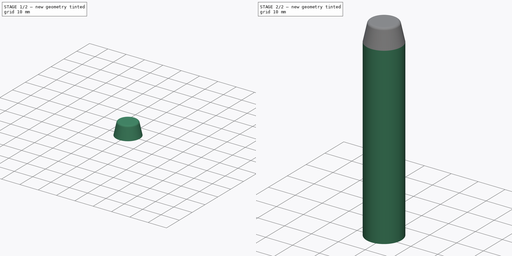
[diagram: build sequence overview — one tinted view per stage of 2, left to right]
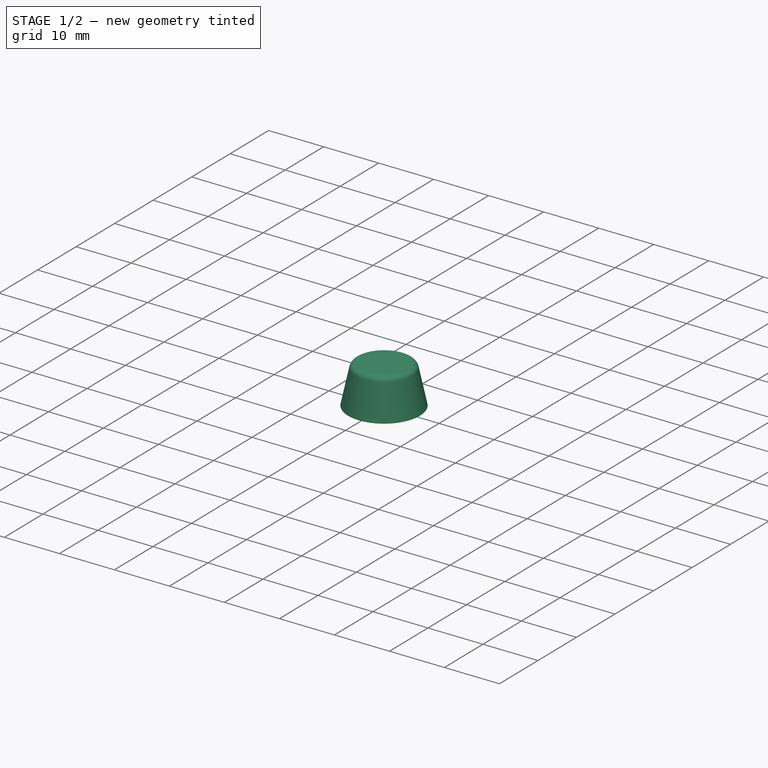
[diagram: stage 1 of 2 — iso view after this stage's code; geometry added in this stage tinted green]
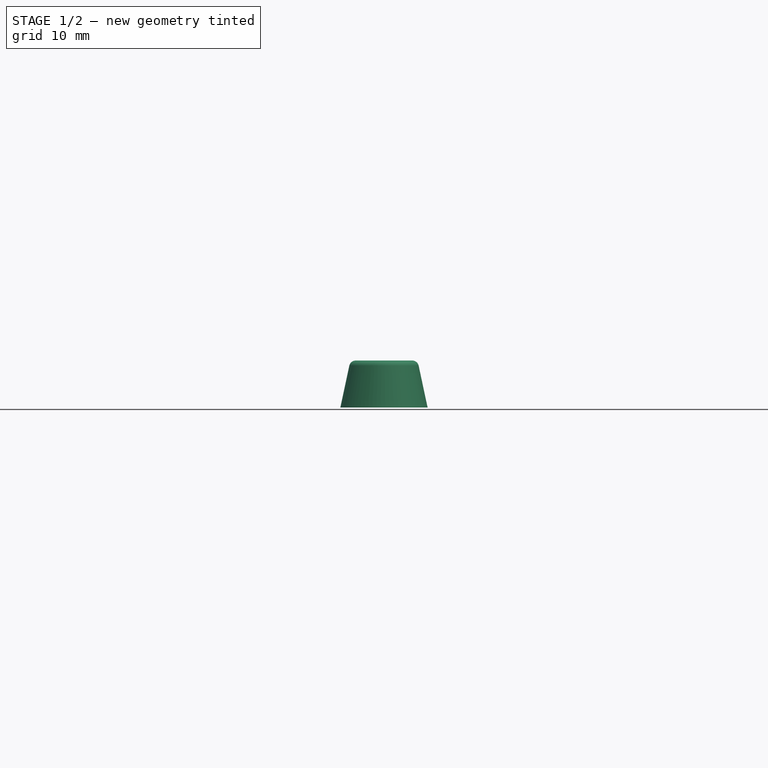
[diagram: stage 1 of 2 — front view after this stage's code; geometry added in this stage tinted green]
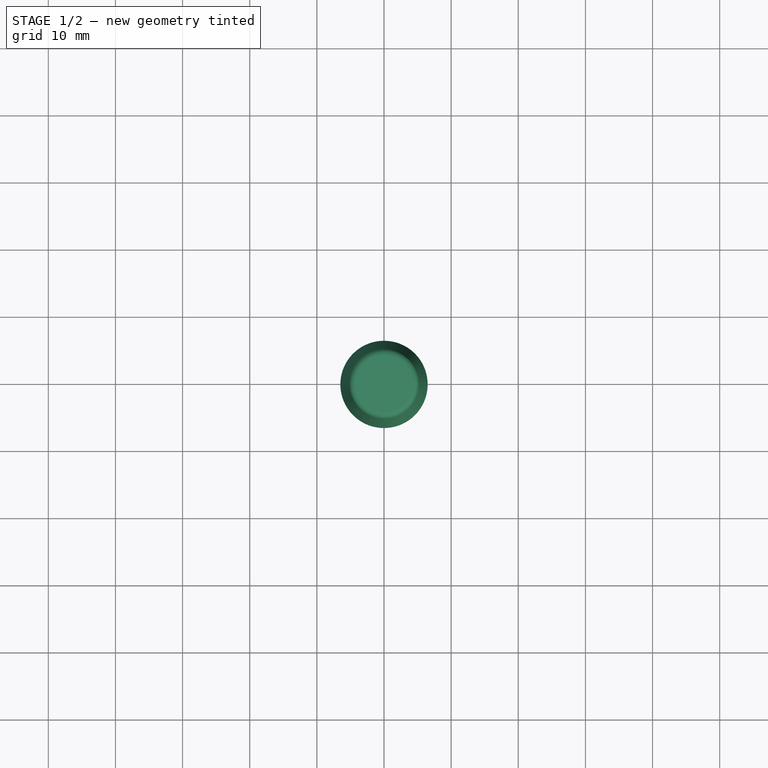
[diagram: stage 1 of 2 — top view after this stage's code; geometry added in this stage tinted green]
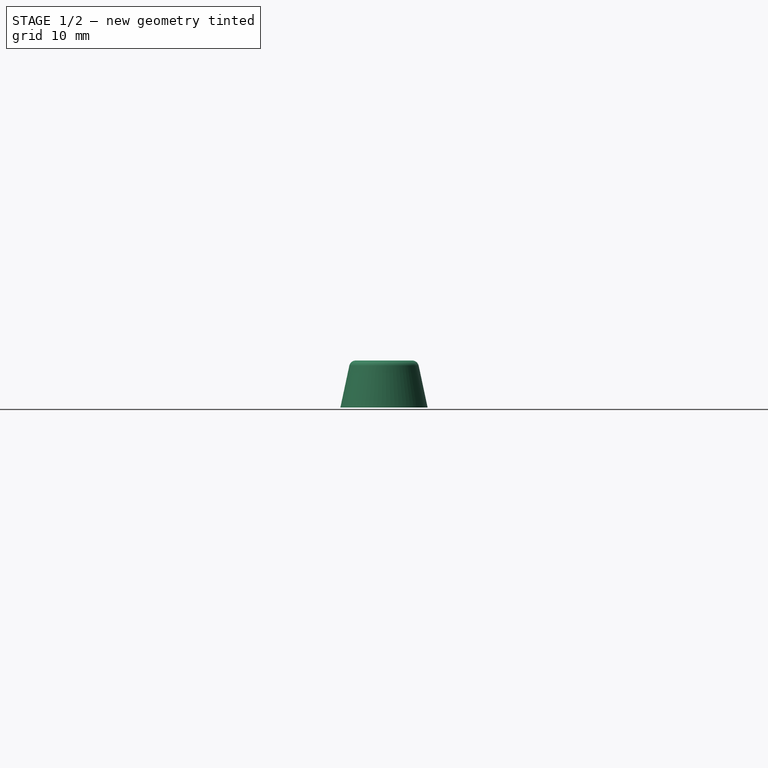
[diagram: stage 1 of 2 — right view after this stage's code; geometry added in this stage tinted green]
FCSTD DOCUMENT  (FreeCAD 0.16R)
Label: nerf_elite_dart
License: All rights reserved
LicenseURL: http://en.wikipedia.org/wiki/All_rights_reserved
objects: Sketcher::SketchObject×2, PartDesign::Pad×1, PartDesign::Revolution×1, PartDesign::Fillet×1
note: 7 computed .brp shape members not serialized (recipe doc carries the construction recipe); baked Part::Feature solids carry a one-line shape summary decoded from their .brp

FEATURE [Sketcher::SketchObject] Sketch002
  Placement = pos=(0,0,0) rot=(-1,0,0;4.71239rad)
  sketch-geometry (8):
    g0: GeomPoint [constr] X=0 Y=72 Z=0
    g1: LineSegment StartX=0 StartY=72 StartZ=0 EndX=-5 EndY=72 EndZ=0
    g2: LineSegment [constr] StartX=0 StartY=65 StartZ=0 EndX=-6.5 EndY=65 EndZ=0
    g3: LineSegment StartX=-5 StartY=72 StartZ=0 EndX=-6.5 EndY=65 EndZ=0
    g4: LineSegment [constr] StartX=-6.5 StartY=65 StartZ=0 EndX=-6.5 EndY=72 EndZ=0
    g5: LineSegment [constr] StartX=-6.5 StartY=72 StartZ=0 EndX=-5 EndY=72 EndZ=0
    g6: LineSegment StartX=-6.5 StartY=65 StartZ=0 EndX=0 EndY=65 EndZ=0
    g7: LineSegment StartX=0 StartY=72 StartZ=0 EndX=0 EndY=65 EndZ=0
  constraints (21):
    c: PointOnObject(g0,g-2)
    c: DistanceY(g-1,g0) = 72
    c: Horizontal(g1)
    c: Coincident(g1,g0)
    c: DistanceX(g1,g1) = 5
    c: PointOnObject(g2,g-2)
    c: Horizontal(g2)
    c: DistanceY(g2,g0) = 7
    c: DistanceX(g2,g2) = 6.5
    c: Coincident(g3,g1)
    c: Coincident(g3,g2)
    c: Vertical(g4)
    c: Horizontal(g5)
    c: Coincident(g1,g5)
    c: Coincident(g4,g5)
    c: Coincident(g2,g4)
    c: Horizontal(g6)
    c: Coincident(g2,g6)
    c: Coincident(g2,g6)
    c: Coincident(g7,g0)
    c: Coincident(g2,g7)
FEATURE [PartDesign::Revolution] Revolution
  Angle = 360
  Axis = (0,0,1)
  Base = (0,0,0)
  Placement = pos=(0,0,0) rot=(-1,0,0;4.71239rad)
  ReferenceAxis = -> Sketch002 [V_Axis]
  Sketch = -> Sketch002
FEATURE [PartDesign::Fillet] Fillet
  Base = -> Revolution [Edge1]
  Placement = pos=(0,0,0) rot=(-1,0,0;4.71239rad)
  Radius = 1
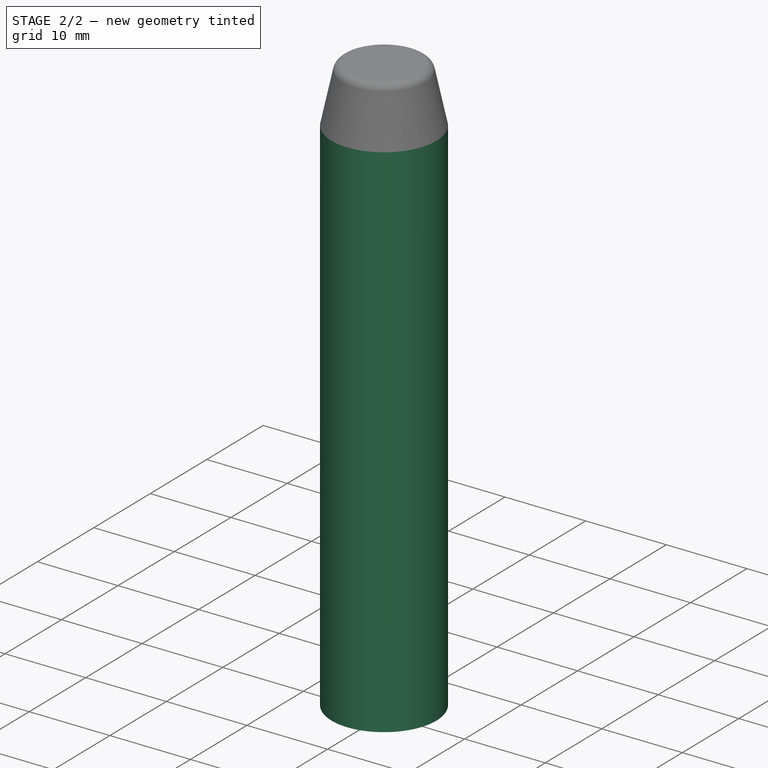
[diagram: stage 2 of 2 — iso view after this stage's code; geometry added in this stage tinted green]
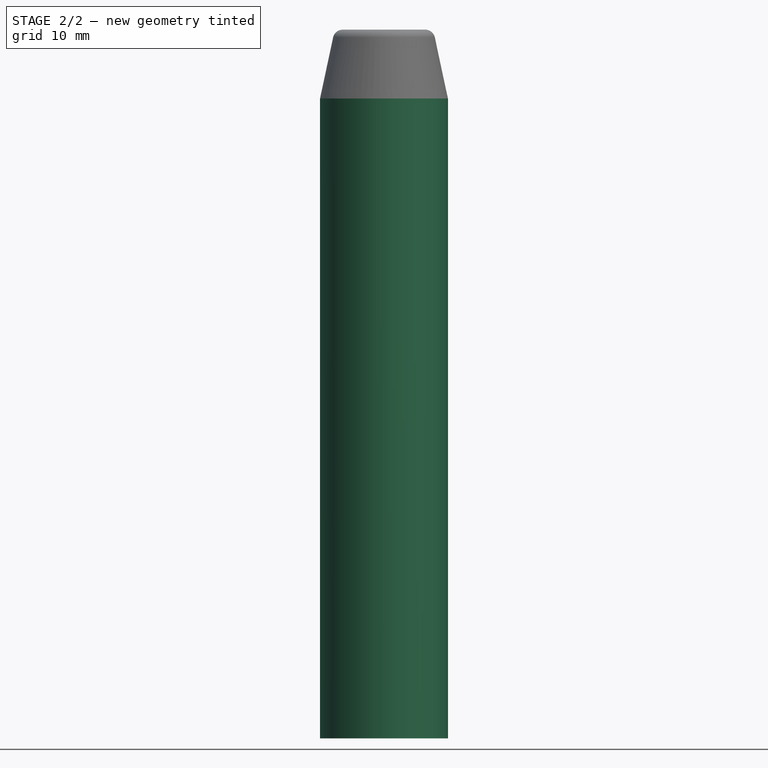
[diagram: stage 2 of 2 — front view after this stage's code; geometry added in this stage tinted green]
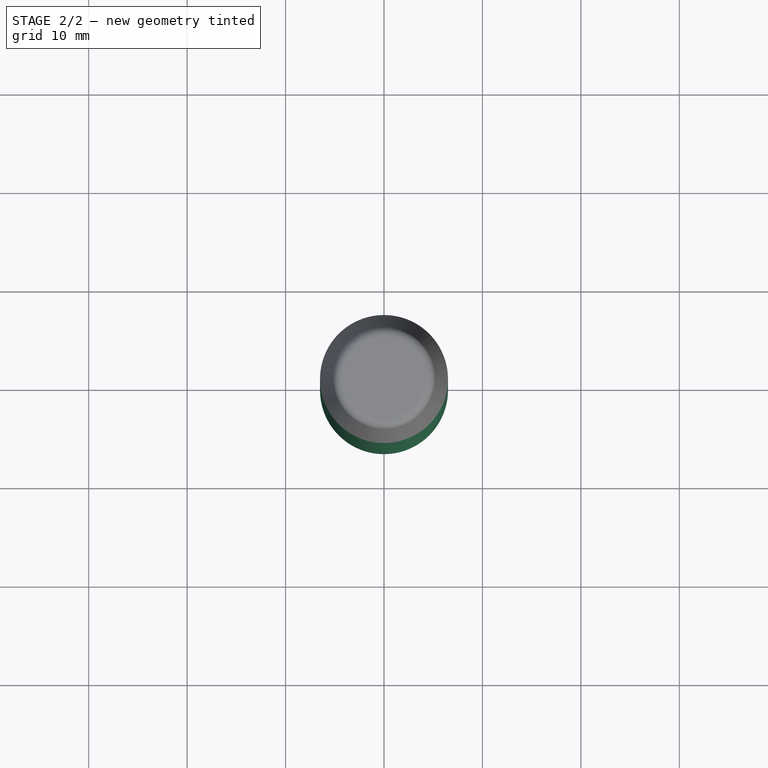
[diagram: stage 2 of 2 — top view after this stage's code; geometry added in this stage tinted green]
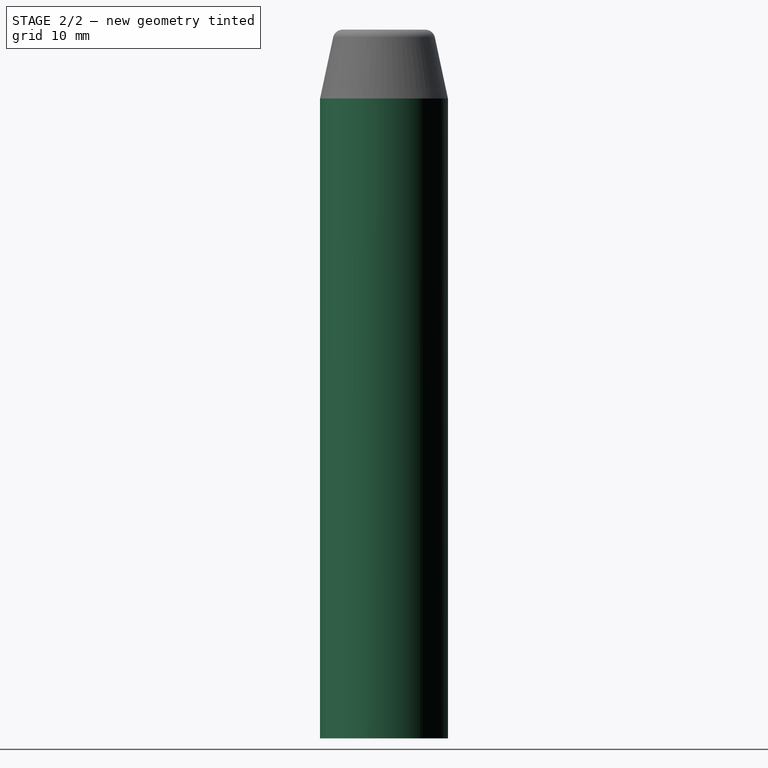
[diagram: stage 2 of 2 — right view after this stage's code; geometry added in this stage tinted green]
FEATURE [Sketcher::SketchObject] Sketch
  sketch-geometry (2):
    g0: Circle CenterX=0 CenterY=0 CenterZ=0 NormalX=0 NormalY=0 NormalZ=1 Radius=6.5
    g1: Circle CenterX=0 CenterY=0 CenterZ=0 NormalX=0 NormalY=0 NormalZ=1 Radius=2.5
  constraints (4):
    c: Coincident(g0,g-1)
    c: Radius(g0) = 6.5
    c: Coincident(g1,g-1)
    c: Radius(g1) = 2.5
FEATURE [PartDesign::Pad] Pad
  Length = 65
  Length2 = 100
  Sketch = -> Sketch
  Type = 0
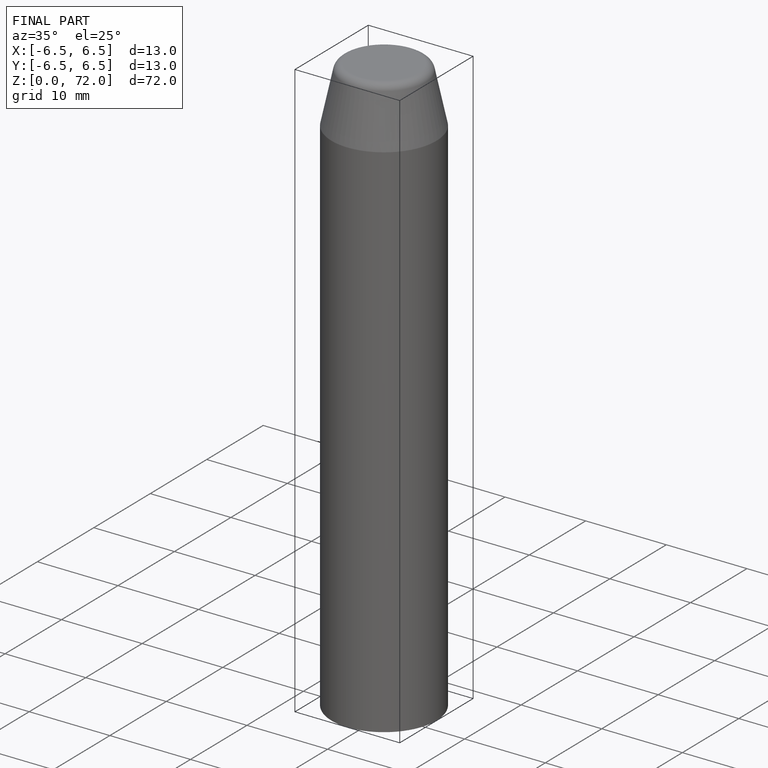
[diagram: finished part — iso view with bounding-box wireframe]
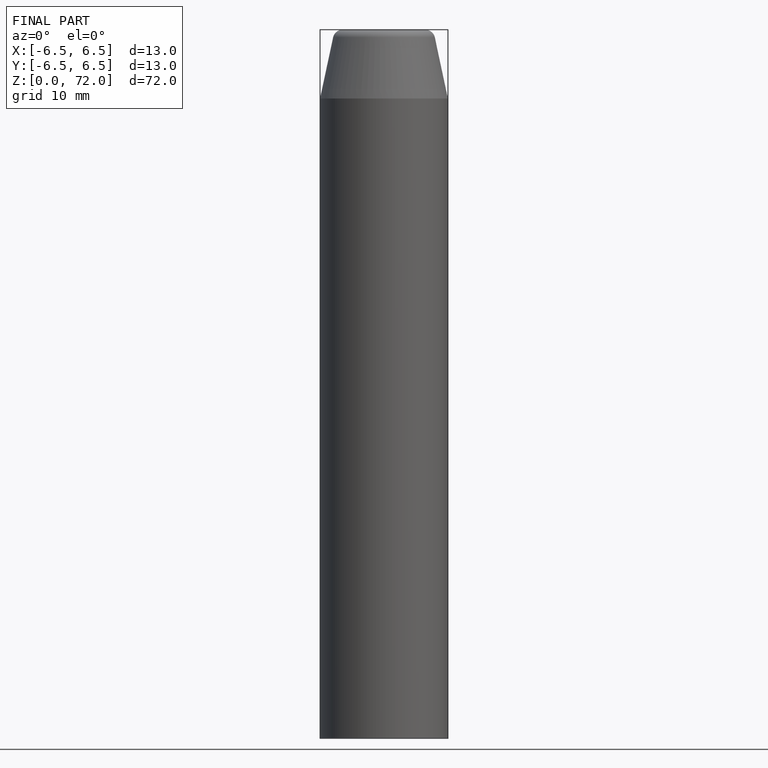
[diagram: finished part — front view with bounding-box wireframe]
